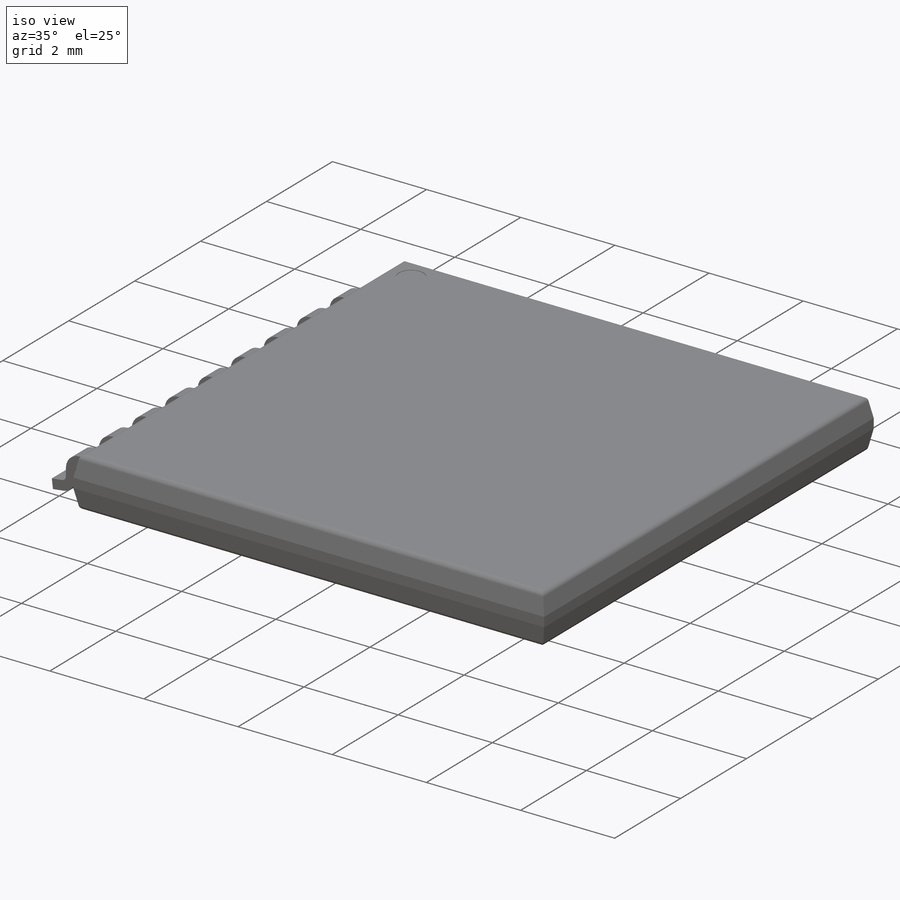
[diagram: iso view]
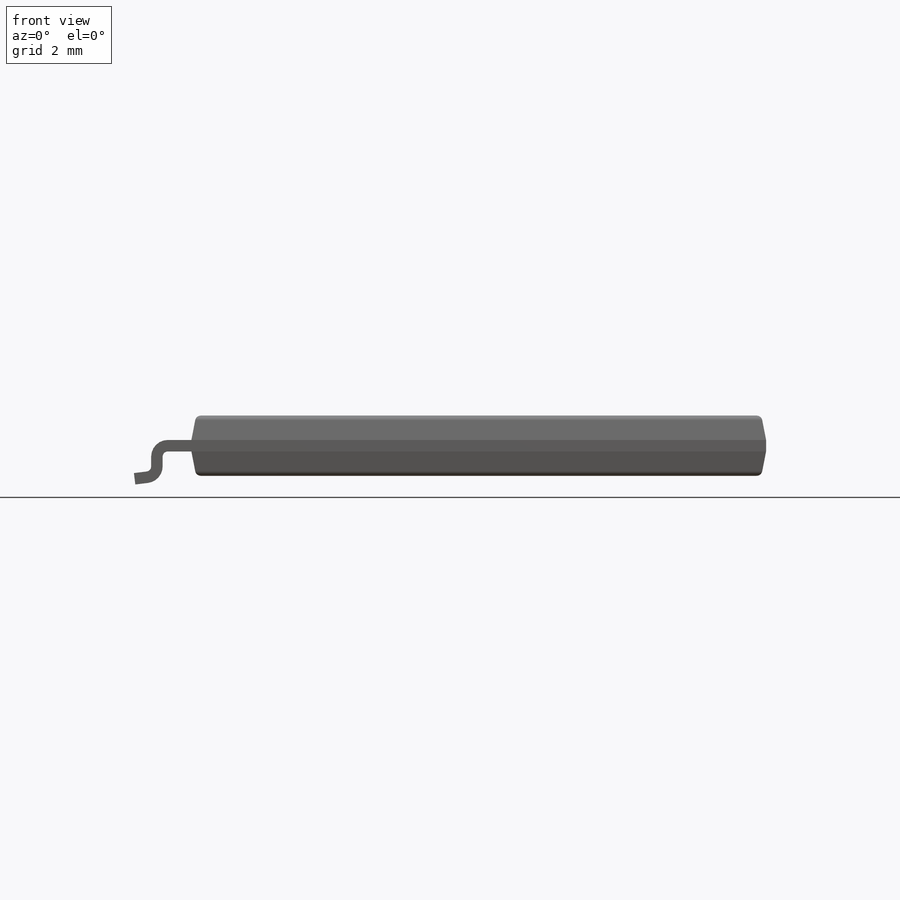
[diagram: front view]
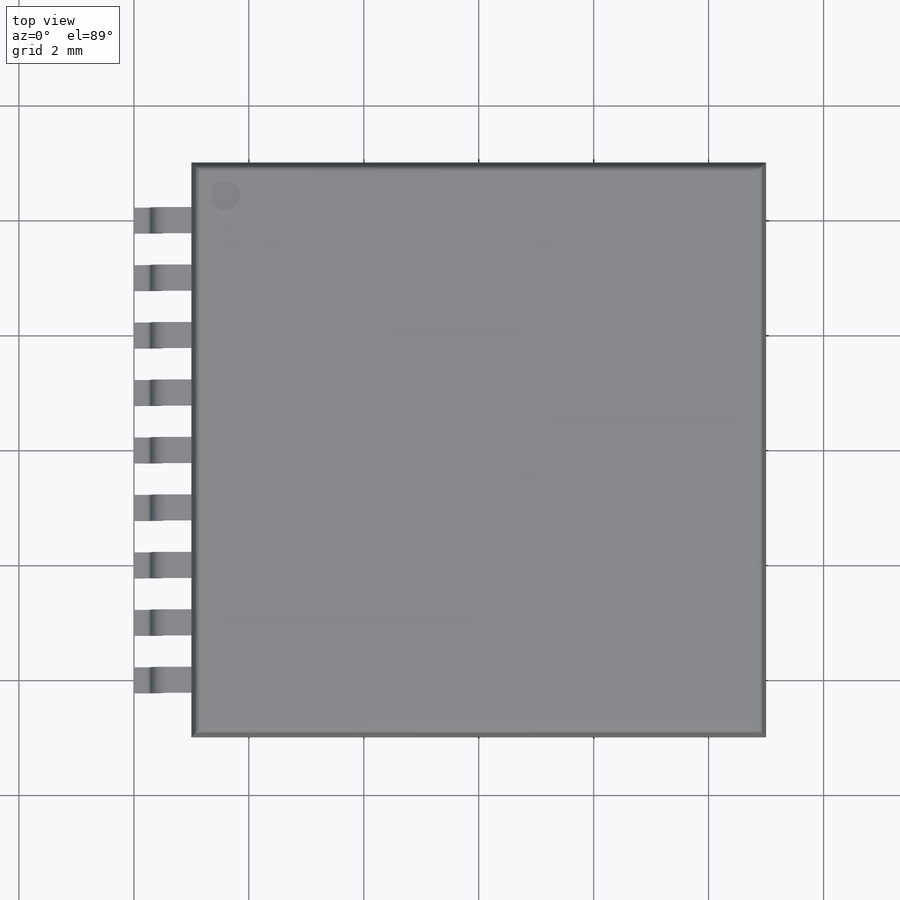
[diagram: top view]
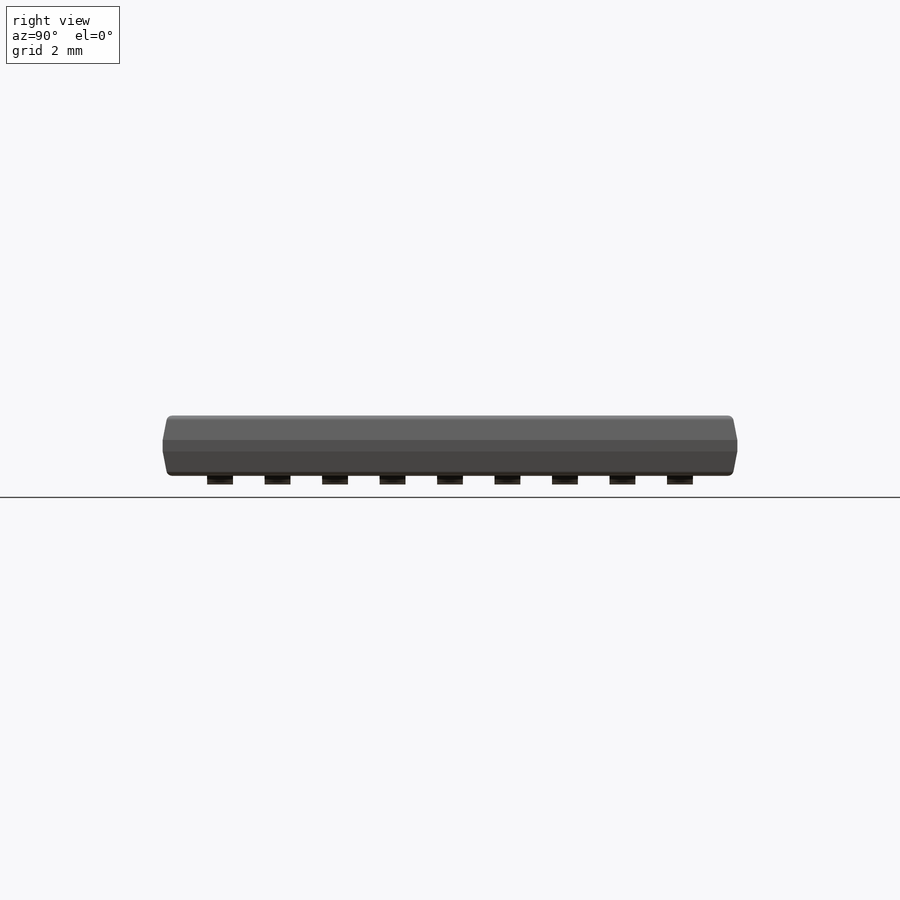
[diagram: right view]
SOLIDWORKS PART (.sldprt)
format: sldprt  version: not decoded by parser v0  size: 1,579,520 bytes
history: native  units: mm
features: sketch x4, extrude x2, plane x2, material x1, chamfer x1, fillet x1, cut_extrude x1, pattern_linear x1 (+12 scaffold rows collapsed)
feature tree (25):
  scaffold x12  (default folders/planes/origin — collapsed)
  material  "Matériau <non spécifié>"
  sketch  "S_Body"  dims[D1=10.0mm D2=1.0mm D3=4.5mm E1=10.0mm]
  extrude  "Body"  Depth=1.2mm A=1.2mm A1=0.15mm
  chamfer  "C_Body"  Distance=0.425mm Angle=11deg α=11deg
  fillet  "F_Body"  Radius=0.1mm
  sketch  "S_PinIndent"  dims[c1.D1=~0.527069mm c1.D2=~0.527069mm c2.D1=0.5mm c2.D2=0.5mm]
  cut_extrude  "PinIndent"  Depth=0.01mm
  plane  "PinLOffset"  Offset=4mm
  sketch  "S_PinL"  dims[c1.R=0.09mm c1.D1=~0.289275mm c1.θ=7.0deg c1.c=0.2mm c1.L=0.5mm c1.D5=0.2mm c1.S=0.25mm c1.c_=0.2mm c1.E/2=3.25mm c2.D1=1.0mm c2.c=0.2mm c2.E=12.0mm c2.E1=10.0mm c2.D2=10.0mm c3.E=12.0mm c3.L=0.5mm]
  extrude  "PinL"  Depth=0.45mm b=0.45mm
  pattern_linear  "RL_PinsL"  Count1=9 Count2=1 Spacing1=1mm Spacing2=10mm Side=9 e=1mm
  plane  "PinROffset"  Offset=1mm
  sketch  "S_PinR"  dims[D2=0.09mm D1=7.0deg D3=0.2mm D4=10.0mm D5=12.0mm D6=0.5mm]
decode coverage: 10 of 10 modeling features carry decoded parameters
note: ~ marks probable driven/reference dimensions
note: suppression state not decoded; provenance and decode notes live in map.json
